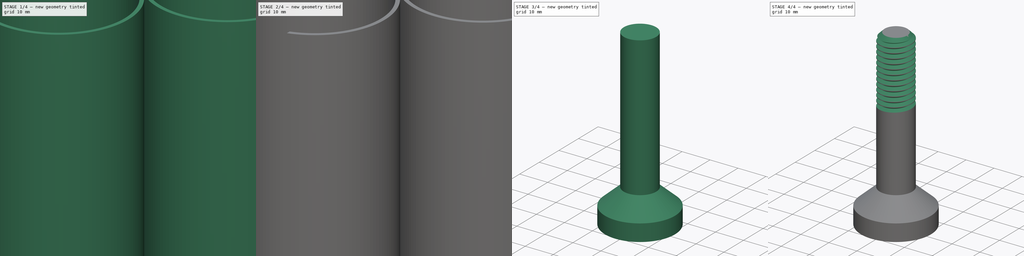
[diagram: build sequence overview — one tinted view per stage of 4, left to right]
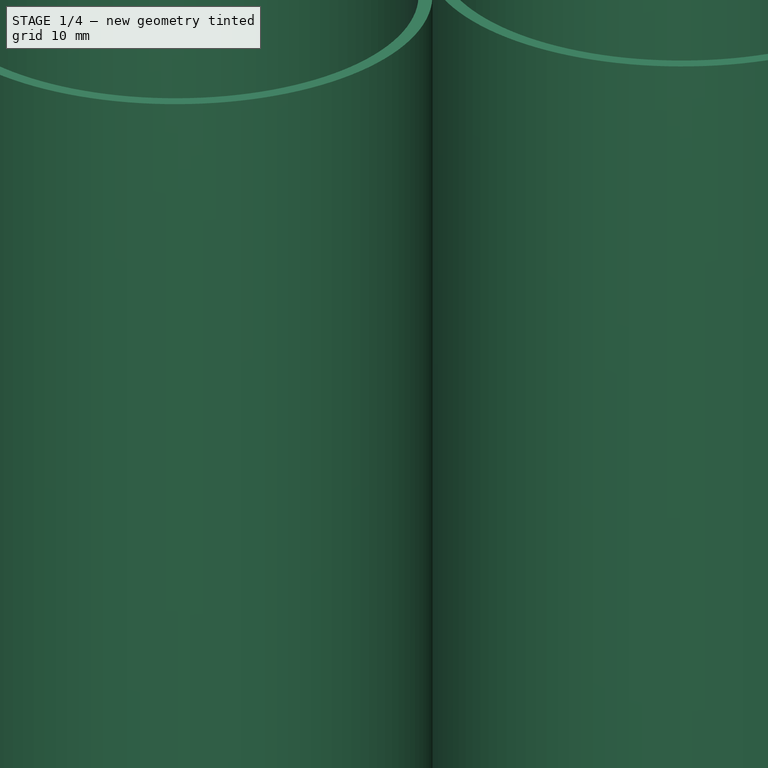
[diagram: stage 1 of 4 — iso view after this stage's code; geometry added in this stage tinted green]
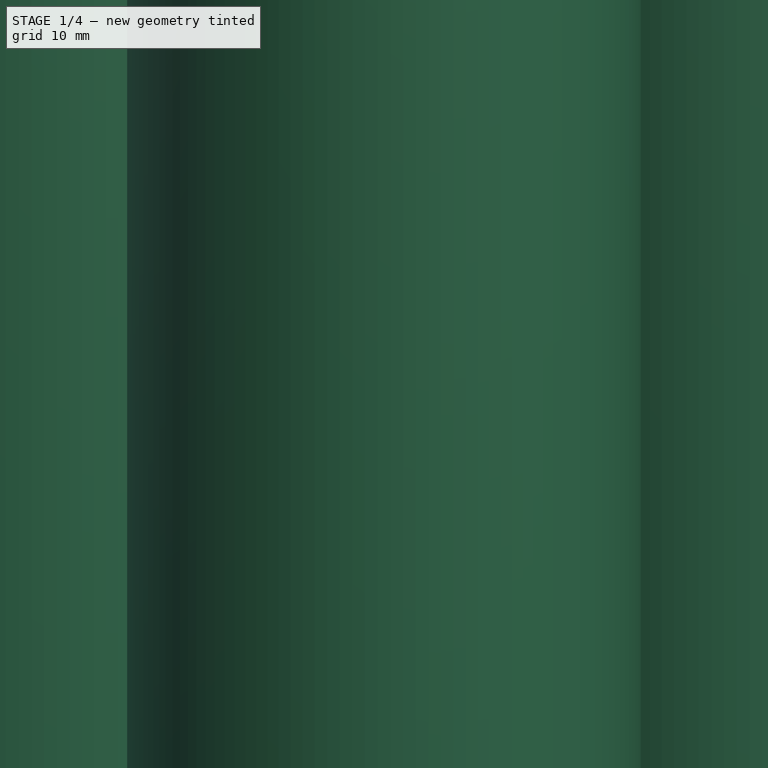
[diagram: stage 1 of 4 — front view after this stage's code; geometry added in this stage tinted green]
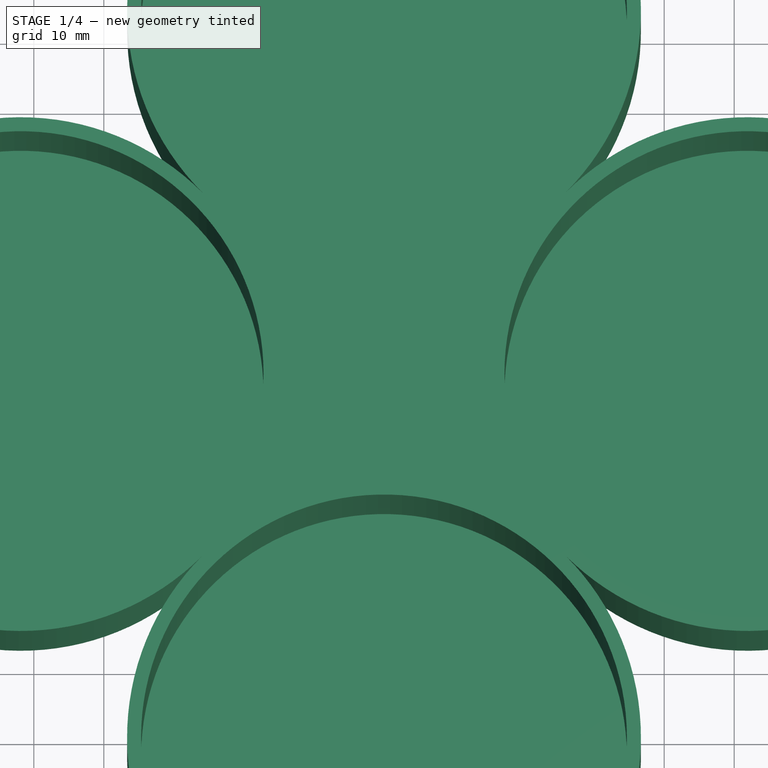
[diagram: stage 1 of 4 — top view after this stage's code; geometry added in this stage tinted green]
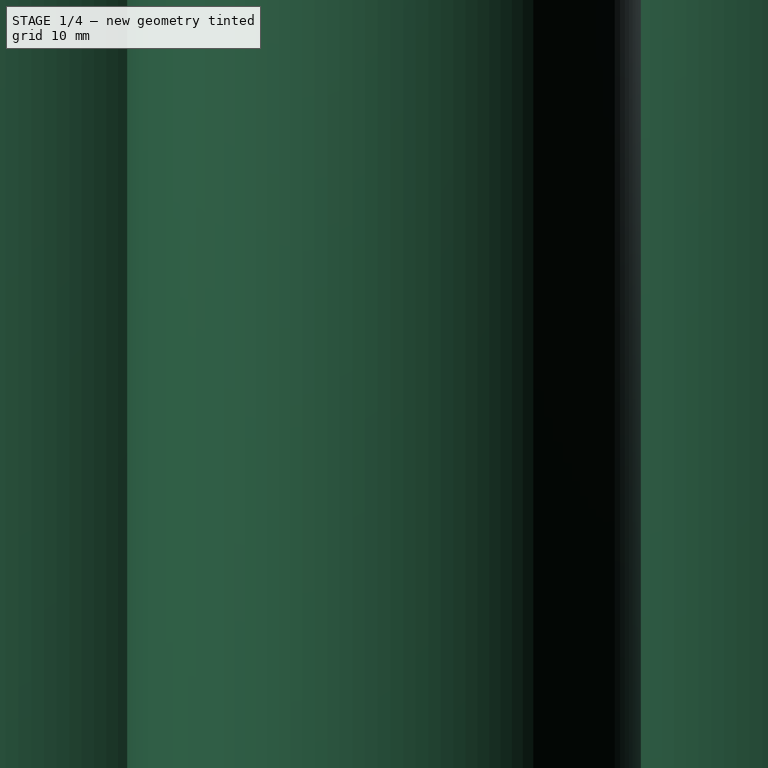
[diagram: stage 1 of 4 — right view after this stage's code; geometry added in this stage tinted green]
FCSTD DOCUMENT  (FreeCAD 2023.131R26244 +5365 (Git))
Label: Petri Dish Holder
License: All rights reserved
LicenseURL: http://en.wikipedia.org/wiki/All_rights_reserved
objects: Sketcher::SketchObject×7, PartDesign::Pad×3, PartDesign::Hole×2, PartDesign::Body×2, Spreadsheet::Sheet×1, PartDesign::Pocket×1, PartDesign::AdditiveCone×1, PartDesign::Chamfer×1, PartDesign::SubtractiveHelix×1
note: 43 computed .brp shape members not serialized (recipe doc carries the construction recipe); baked Part::Feature solids carry a one-line shape summary decoded from their .brp

FEATURE [Spreadsheet::Sheet] Spreadsheet  label="Parameters"
  PythonMode = false
  ShowCells = 0
  TreeRank = 1
  cells = A2=Petri Dish Diameter; B2(Petri_Dish_Diameter)=68; A3=Petri Dish Height; B3(Petri_Dish_Height)=18; A4=Petri Dishes per Stack; B4(Petri_Dishes_Per_Stack)=8; A5=Wall Thickness; B5(Wall_Thickness)=2; A6=Finger Slot Width; B6(Finger_Slot_Width)=20; A7=Handle Hole Depth; B7(Handle_Hole_Depth)=25; A9=Petri Dish Hole Diameter; B9(Petri_Dish_Hole_Diameter)==B2 * 1.02; A10=Petri Dish Stack Diameter; B10(Petri_Dish_Stack_Diameter)==B9 + B5 * 2; A11=Petri Dish Hole Distance from Origin; B11(Distance_From_Origin)==B10 * sqrt(2) / 2; A12=Petri Dish Hole Depth; B12(Petri_Dish_Hole_Depth)==B3 * B4; A13=Petri Dish Holder Height; B13(Holder_Height)==B12 + B5
FEATURE [Sketcher::SketchObject] Sketch
  ArcFitTolerance = 1e-06
  AttachmentSupport = -> [XY_Plane]
  ExternalBSplineMaxDegree = 5
  ExternalBSplineTolerance = 0.0001
  FullyConstrained = false
  InternalTolerance = 1e-06
  InvalidShape = false
  MakeInternals = false
  MapMode = 5
  Support = -> [XY_Plane]
  TreeRank = 12
  ValidateShape = true
  expr: Constraints[1] = <<Parameters>>.Petri_Dish_Stack_Diameter
  expr: Constraints[3] = <<Parameters>>.Petri_Dish_Stack_Diameter
  expr: Constraints[4] = <<Parameters>>.Petri_Dish_Stack_Diameter
  expr: Constraints[5] = <<Parameters>>.Petri_Dish_Stack_Diameter
  expr: Constraints[8] = <<Parameters>>.Distance_From_Origin
  expr: Constraints[9] = <<Parameters>>.Distance_From_Origin
  sketch-geometry (12):
    g0: ArcOfCircle CenterX=51.8734 CenterY=0 CenterZ=0 NormalX=0 NormalY=0 NormalZ=1 AngleXU=0 Radius=36.68 StartAngle=3.92699 EndAngle=8.63938
    g1: ArcOfCircle CenterX=0 CenterY=51.8734 CenterZ=0 NormalX=0 NormalY=0 NormalZ=1 AngleXU=0 Radius=36.68 StartAngle=5.49779 EndAngle=10.2102
    g2: ArcOfCircle CenterX=-51.8734 CenterY=0 CenterZ=0 NormalX=0 NormalY=0 NormalZ=1 AngleXU=0 Radius=36.68 StartAngle=0.785396 EndAngle=5.49779
    g3: ArcOfCircle CenterX=0 CenterY=-51.8734 CenterZ=0 NormalX=0 NormalY=0 NormalZ=1 AngleXU=0 Radius=36.68 StartAngle=2.35619 EndAngle=7.06858
    g4: GeomPoint [constr] X=25.9367 Y=25.9367 Z=0
    g5: GeomPoint [constr] X=25.9367 Y=25.9367 Z=0
    g6: GeomPoint [constr] X=25.9367 Y=-25.9367 Z=0
    g7: GeomPoint [constr] X=25.9367 Y=-25.9367 Z=0
    g8: GeomPoint [constr] X=-25.9367 Y=-25.9367 Z=0
    g9: GeomPoint [constr] X=-25.9367 Y=-25.9367 Z=0
    g10: GeomPoint [constr] X=-25.3996 Y=25.3882 Z=0
    g11: GeomPoint [constr] X=-25.3996 Y=25.3882 Z=0
  constraints (25):
    c: PointOnObject(g0,g-1)
    c: Diameter(g0) = 73.36
    c: PointOnObject(g1,g-2)
    c: Diameter(g1) = 73.36
    c: Diameter(g2) = 73.36
    c: Diameter(g3) = 73.36
    c: Symmetric(g2,g0,g-1)
    c: Symmetric(g1,g3,g-1)
    c: Distance(g1,g-1) = 51.8734
    c: Distance(g2,g-1) = 51.8734
    c: PointOnObject(g4,g1)
    c: PointOnObject(g5,g0)
    c: PointOnObject(g6,g0)
    c: PointOnObject(g7,g3)
    c: PointOnObject(g8,g2)
    c: PointOnObject(g9,g3)
    c: PointOnObject(g11,g2)
    c: Coincident(g10,g11)
    c: Coincident(g5,g4)
    c: Coincident(g6,g7)
    c: Coincident(g8,g9)
    c: Coincident(g1,g2)
    c: Coincident(g0,g1)
    c: Coincident(g3,g0)
    c: Coincident(g3,g2)
FEATURE [PartDesign::Pad] Pad
  AddSubType = 0
  AlongSketchNormal = false
  AutoTaperInnerAngle = true
  CheckUpToFaceLimits = true
  ClaimChildren = false
  Direction = (0,0,1)
  Fit = 0
  FitJoin = 0
  InnerFit = 0
  InnerFitJoin = 0
  InvalidShape = false
  Length = 146
  Length2 = 100
  Linearize = true
  NewSolid = false
  Profile = -> Sketch
  Suppress = false
  TaperInnerAngle = 0
  TaperInnerAngleRev = 0
  TreeRank = 13
  Type = 0
  ValidateShape = true
  _ProfileBasedVersion = 1
  expr: Length = <<Parameters>>.Holder_Height
FEATURE [Sketcher::SketchObject] Sketch001
  ArcFitTolerance = 1e-06
  AttachmentSupport = -> [Pad]
  ExternalBSplineMaxDegree = 5
  ExternalBSplineTolerance = 0.0001
  FullyConstrained = true
  InternalTolerance = 1e-06
  InvalidShape = false
  MakeInternals = false
  MapMode = 5
  Placement = pos=(0,0,162) rot=(0,0,1;0rad)
  Support = -> [Pad]
  TreeRank = 14
  ValidateShape = true
  expr: Constraints[2] = <<Parameters>>.Petri_Dish_Hole_Diameter
  expr: Constraints[3] = <<Parameters>>.Petri_Dish_Hole_Diameter
  expr: Constraints[4] = <<Parameters>>.Petri_Dish_Hole_Diameter
  expr: Constraints[5] = <<Parameters>>.Petri_Dish_Hole_Diameter
  expr: Constraints[8] = <<Parameters>>.Distance_From_Origin
  expr: Constraints[9] = <<Parameters>>.Distance_From_Origin
  sketch-geometry (4):
    g0: Circle CenterX=51.8734 CenterY=0 CenterZ=0 NormalX=0 NormalY=0 NormalZ=1 AngleXU=0 Radius=34.68
    g1: Circle CenterX=0 CenterY=51.8734 CenterZ=0 NormalX=0 NormalY=0 NormalZ=1 AngleXU=0 Radius=34.68
    g2: Circle CenterX=-51.8734 CenterY=0 CenterZ=0 NormalX=0 NormalY=0 NormalZ=1 AngleXU=0 Radius=34.68
    g3: Circle CenterX=0 CenterY=-51.8734 CenterZ=0 NormalX=0 NormalY=0 NormalZ=1 AngleXU=0 Radius=34.68
  constraints (10):
    c: PointOnObject(g0,g-1)
    c: PointOnObject(g1,g-2)
    c: Diameter(g0) = 69.36
    c: Diameter(g1) = 69.36
    c: Diameter(g2) = 69.36
    c: Diameter(g3) = 69.36
    c: Symmetric(g2,g0,g-1)
    c: Symmetric(g1,g3,g-1)
    c: Distance(g-1,g0) = 51.8734
    c: Distance(g-1,g3) = 51.8734
FEATURE [PartDesign::Hole] Hole  label="Petri_Dish_Holes"
  AddSubType = 1
  BaseFeature = -> Pad
  ClaimChildren = false
  CustomThreadClearance = 0
  Depth = 160
  DepthType = 0
  Diameter = 69.36
  DrillForDepth = false
  DrillPoint = 0
  DrillPointAngle = 118
  Fit = 0
  FitJoin = 0
  HoleCutCountersinkAngle = 90
  HoleCutCustomValues = false
  HoleCutDepth = 0
  HoleCutDiameter = 74.9
  HoleCutType = 0
  InnerFit = 0
  InnerFitJoin = 0
  InvalidShape = false
  Linearize = true
  ModelThread = false
  NewSolid = false
  Profile = -> Sketch001
  Suppress = false
  Tapered = false
  TaperedAngle = 90
  ThreadClass = 0
  ThreadDepth = 160
  ThreadDepthType = 0
  ThreadDirection = 0
  ThreadFit = 0
  ThreadSize = 0
  ThreadType = 0
  Threaded = false
  TreeRank = 15
  UseCustomThreadClearance = false
  ValidateShape = true
  _ProfileBasedVersion = 1
  expr: Depth = <<Parameters>>.Petri_Dish_Hole_Depth
  expr: Diameter = <<Parameters>>.Petri_Dish_Hole_Diameter
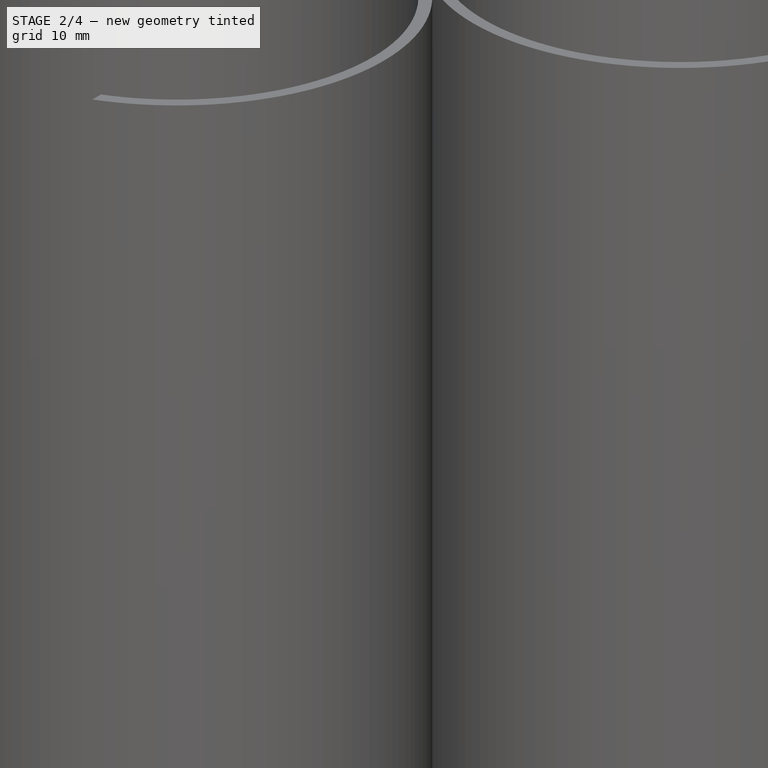
[diagram: stage 2 of 4 — iso view after this stage's code; geometry added in this stage tinted green]
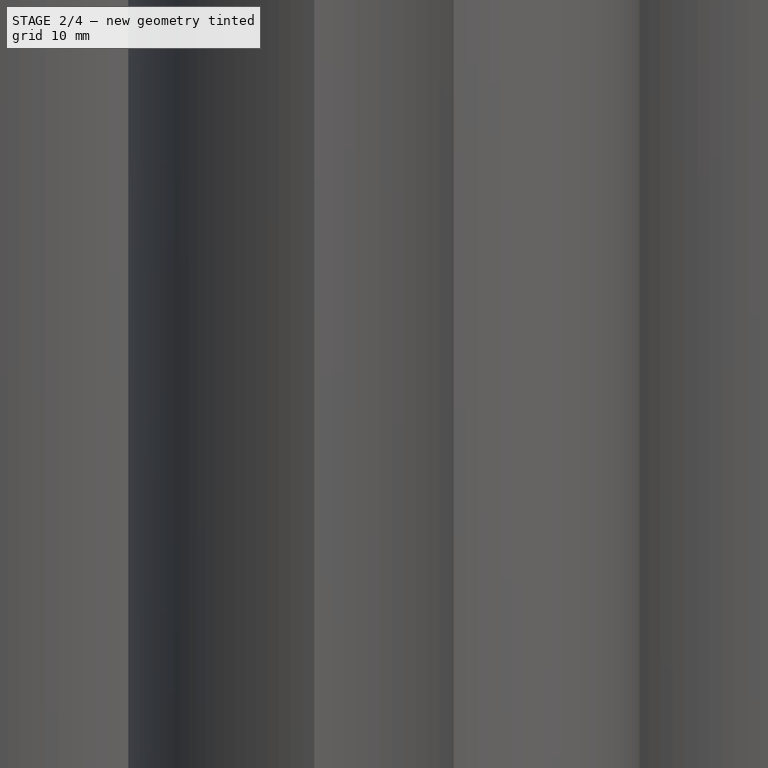
[diagram: stage 2 of 4 — front view after this stage's code; geometry added in this stage tinted green]
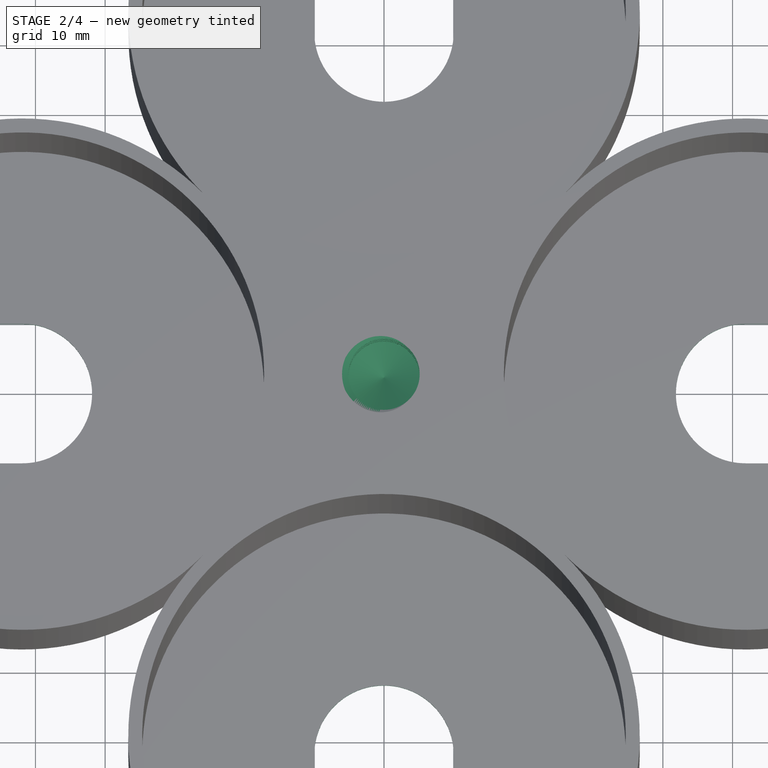
[diagram: stage 2 of 4 — top view after this stage's code; geometry added in this stage tinted green]
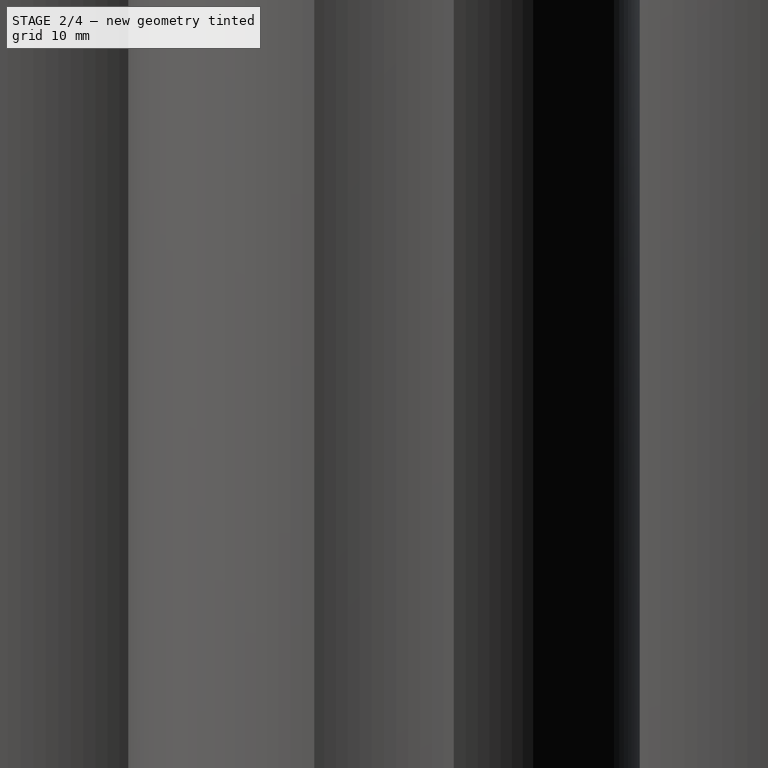
[diagram: stage 2 of 4 — right view after this stage's code; geometry added in this stage tinted green]
FEATURE [Sketcher::SketchObject] Sketch002
  ArcFitTolerance = 1e-06
  AttachmentSupport = -> [Hole]
  ExternalBSplineMaxDegree = 5
  ExternalBSplineTolerance = 0.0001
  FullyConstrained = true
  InternalTolerance = 1e-06
  InvalidShape = false
  MakeInternals = false
  MapMode = 5
  Placement = pos=(0,0,162) rot=(0,0,1;0rad)
  Support = -> [Hole]
  TreeRank = 16
  ValidateShape = true
  expr: Constraints[11] = <<Parameters>>.Finger_Slot_Width
  expr: Constraints[12] = <<Parameters>>.Finger_Slot_Width
  expr: Constraints[13] = <<Parameters>>.Finger_Slot_Width
  expr: Constraints[14] = <<Parameters>>.Distance_From_Origin
  expr: Constraints[15] = <<Parameters>>.Distance_From_Origin
  expr: Constraints[16] = <<Parameters>>.Distance_From_Origin
  expr: Constraints[17] = <<Parameters>>.Petri_Dish_Hole_Diameter
  expr: Constraints[1] = <<Parameters>>.Finger_Slot_Width
  expr: Constraints[33] = <<Parameters>>.Petri_Dish_Hole_Diameter
  expr: Constraints[34] = <<Parameters>>.Petri_Dish_Hole_Diameter
  expr: Constraints[35] = <<Parameters>>.Petri_Dish_Hole_Diameter
  expr: Constraints[7] = <<Parameters>>.Distance_From_Origin
  sketch-geometry (16):
    g0: ArcOfCircle CenterX=51.8734 CenterY=0 CenterZ=0 NormalX=0 NormalY=0 NormalZ=1 AngleXU=0 Radius=10 StartAngle=1.5708 EndAngle=4.71239
    g1: LineSegment StartX=51.8734 StartY=10 StartZ=0 EndX=121.233 EndY=10 EndZ=0
    g2: LineSegment StartX=51.8734 StartY=-10 StartZ=0 EndX=121.233 EndY=-10 EndZ=0
    g3: LineSegment StartX=121.233 StartY=10 StartZ=0 EndX=121.233 EndY=-10 EndZ=0
    g4: ArcOfCircle CenterX=0 CenterY=-51.8734 CenterZ=0 NormalX=0 NormalY=0 NormalZ=1 AngleXU=0 Radius=10 StartAngle=-9e-16 EndAngle=3.14159
    g5: ArcOfCircle CenterX=-51.8734 CenterY=0 CenterZ=0 NormalX=0 NormalY=0 NormalZ=1 AngleXU=0 Radius=10 StartAngle=4.71239 EndAngle=7.85398
    g6: ArcOfCircle CenterX=0 CenterY=51.8734 CenterZ=0 NormalX=0 NormalY=0 NormalZ=1 AngleXU=0 Radius=10 StartAngle=3.14159 EndAngle=6.28319
    g7: LineSegment StartX=-10 StartY=-51.8734 StartZ=0 EndX=-10 EndY=-121.233 EndZ=0
    g8: LineSegment StartX=10 StartY=-51.8734 StartZ=0 EndX=10 EndY=-121.233 EndZ=0
    g9: LineSegment StartX=10 StartY=-121.233 StartZ=0 EndX=-10 EndY=-121.233 EndZ=0
    g10: LineSegment StartX=-51.8734 StartY=-10 StartZ=0 EndX=-121.233 EndY=-10 EndZ=0
    g11: LineSegment StartX=-51.8734 StartY=10 StartZ=0 EndX=-121.233 EndY=10 EndZ=0
    g12: LineSegment StartX=-121.233 StartY=10 StartZ=0 EndX=-121.233 EndY=-10 EndZ=0
    g13: LineSegment StartX=-10 StartY=51.8734 StartZ=0 EndX=-10 EndY=121.233 EndZ=0
    g14: LineSegment StartX=10 StartY=51.8734 StartZ=0 EndX=10 EndY=121.233 EndZ=0
    g15: LineSegment StartX=10 StartY=121.233 StartZ=0 EndX=-10 EndY=121.233 EndZ=0
  constraints (44):
    c: PointOnObject(g0,g-1)
    c: Diameter(g0) = 20
    c: Horizontal(g1)
    c: Horizontal(g2)
    c: Coincident(g3,g1)
    c: Coincident(g3,g2)
    c: Vertical(g3)
    c: Distance(g-1,g0) = 51.8734
    c: PointOnObject(g4,g-2)
    c: PointOnObject(g5,g-1)
    c: PointOnObject(g6,g-2)
    c: Diameter(g6) = 20
    c: Diameter(g5) = 20
    c: Diameter(g4) = 20
    c: Distance(g-1,g4) = 51.8734
    c: Distance(g-1,g6) = 51.8734
    c: Distance(g-1,g5) = 51.8734
    c: Distance(g1,g1) = 69.36
    c: Vertical(g7)
    c: Vertical(g8)
    c: Coincident(g9,g8)
    c: Coincident(g9,g7)
    c: Horizontal(g9)
    c: Horizontal(g10)
    c: Horizontal(g11)
    c: Coincident(g12,g11)
    c: Coincident(g12,g10)
    c: Vertical(g13)
    c: Vertical(g14)
    c: Coincident(g15,g14)
    c: Coincident(g15,g13)
    c: Perpendicular(g10,g12)
    c: Perpendicular(g13,g15)
    c: Distance(g14,g14) = 69.36
    c: Distance(g10,g10) = 69.36
    c: Distance(g8,g8) = 69.36
    c: Tangent(g5,g11) = -1.5708
    c: Tangent(g5,g10) = 1.5708
    c: Tangent(g4,g7) = -1.5708
    c: Tangent(g4,g8) = 1.5708
    c: Tangent(g0,g2) = -1.5708
    c: Tangent(g0,g1) = 1.5708
    c: Tangent(g6,g14) = -1.5708
    c: Tangent(g6,g13) = 1.5708
FEATURE [PartDesign::Pocket] Pocket  label="Finger_Slots"
  AddSubType = 1
  AutoTaperInnerAngle = true
  BaseFeature = -> Hole
  CheckUpToFaceLimits = true
  ClaimChildren = false
  Fit = 0
  FitJoin = 0
  InnerFit = 0
  InnerFitJoin = 0
  InvalidShape = false
  Length = 162
  Length2 = 100
  Linearize = true
  NewSolid = false
  Profile = -> Sketch002
  Suppress = false
  TaperInnerAngle = 0
  TaperInnerAngleRev = 0
  TreeRank = 17
  Type = 0
  ValidateShape = true
  _ProfileBasedVersion = 1
  _Version = 1
  expr: Length = <<Parameters>>.Holder_Height
FEATURE [Sketcher::SketchObject] Sketch003
  ArcFitTolerance = 1e-06
  AttachmentSupport = -> [Pocket]
  ExternalBSplineMaxDegree = 5
  ExternalBSplineTolerance = 0.0001
  FullyConstrained = false
  InternalTolerance = 1e-06
  InvalidShape = false
  MakeInternals = false
  MapMode = 5
  Placement = pos=(0,0,162) rot=(0,0,1;0rad)
  Support = -> [Pocket]
  TreeRank = 18
  ValidateShape = true
  sketch-geometry (1):
    g0: Circle CenterX=0 CenterY=0 CenterZ=0 NormalX=0 NormalY=0 NormalZ=1 AngleXU=0 Radius=4.30913
  constraints (1):
    c: Coincident(g0,g-1)
FEATURE [PartDesign::Hole] Hole001  label="Handle_Hole"
  AddSubType = 1
  BaseFeature = -> Pocket
  ClaimChildren = false
  CustomThreadClearance = 0
  Depth = 25
  DepthType = 0
  Diameter = 10.234
  DrillForDepth = false
  DrillPoint = 1
  DrillPointAngle = 118
  Fit = 0
  FitJoin = 0
  HoleCutCountersinkAngle = 90
  HoleCutCustomValues = false
  HoleCutDepth = 0
  HoleCutDiameter = 0
  HoleCutType = 0
  InnerFit = 0
  InnerFitJoin = 0
  InvalidShape = false
  Linearize = true
  ModelThread = true
  NewSolid = false
  Profile = -> Sketch003
  Suppress = false
  Tapered = false
  TaperedAngle = 90
  ThreadClass = 0
  ThreadDepth = 25
  ThreadDepthType = 0
  ThreadDirection = 0
  ThreadFit = 0
  ThreadSize = 20
  ThreadType = 1
  Threaded = true
  TreeRank = 19
  UseCustomThreadClearance = false
  ValidateShape = true
  _ProfileBasedVersion = 1
  expr: Depth = <<Parameters>>.Handle_Hole_Depth
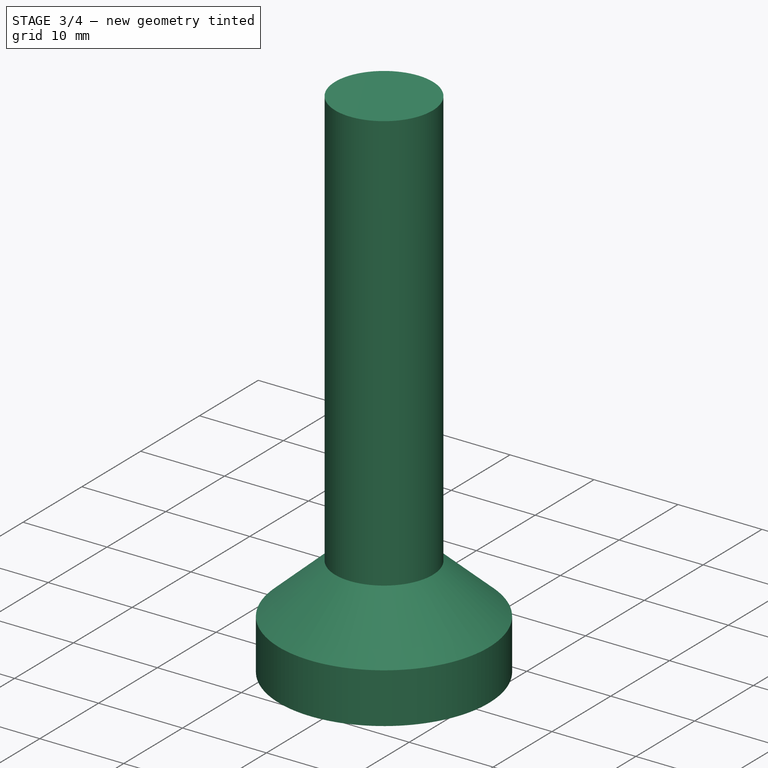
[diagram: stage 3 of 4 — iso view after this stage's code; geometry added in this stage tinted green]
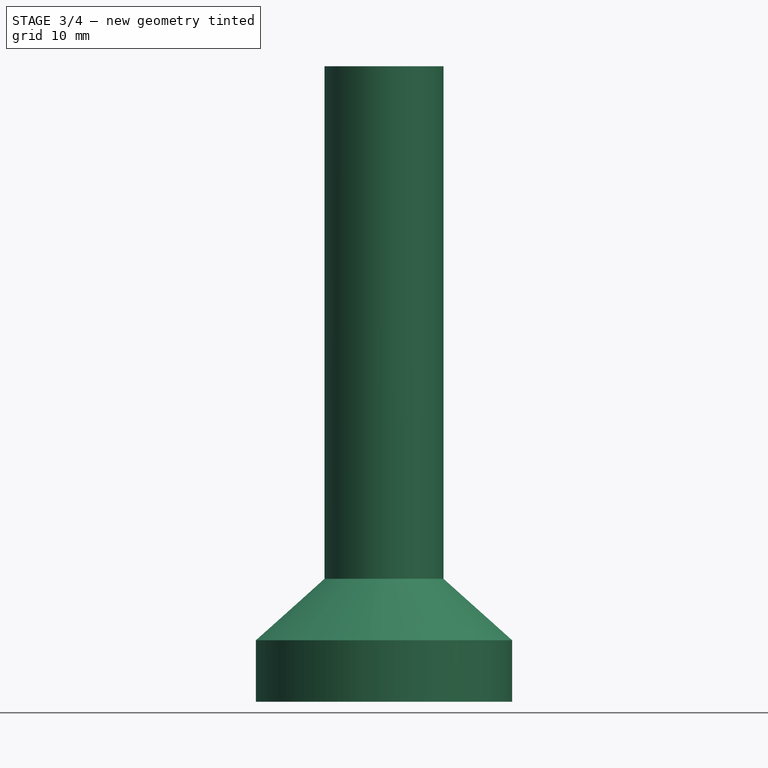
[diagram: stage 3 of 4 — front view after this stage's code; geometry added in this stage tinted green]
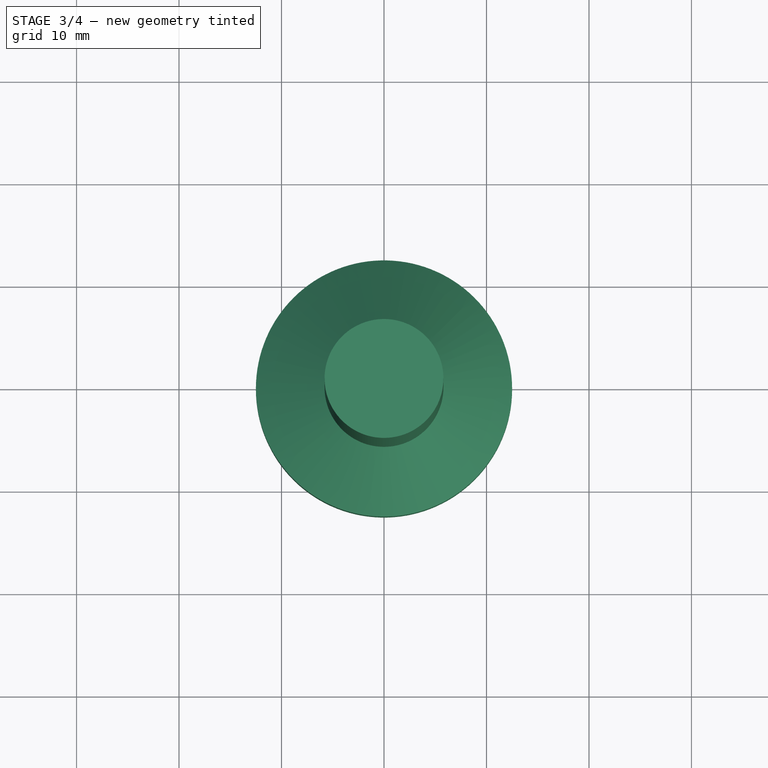
[diagram: stage 3 of 4 — top view after this stage's code; geometry added in this stage tinted green]
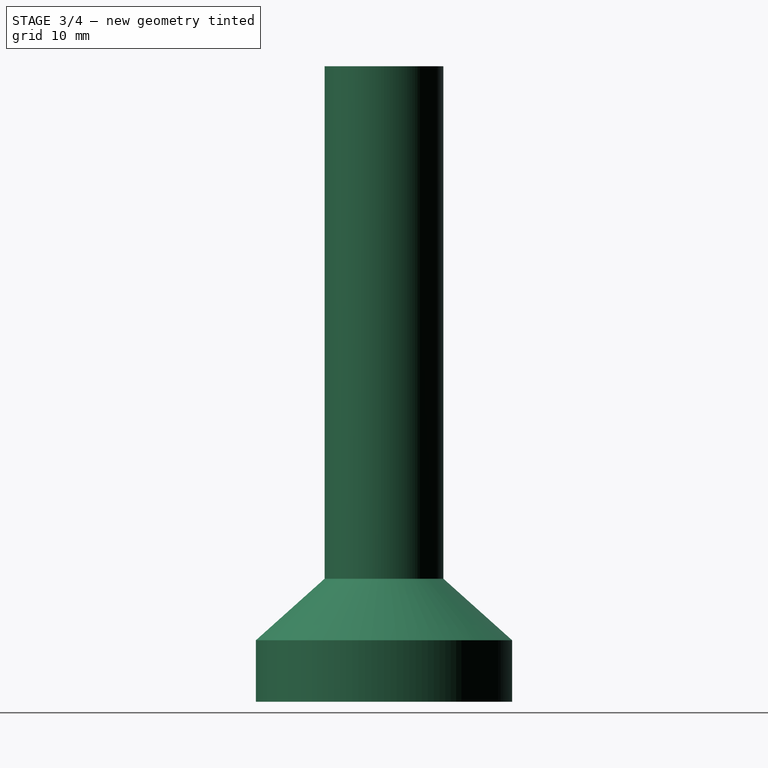
[diagram: stage 3 of 4 — right view after this stage's code; geometry added in this stage tinted green]
FEATURE [PartDesign::Body] Body
  AutoGroupSolids = false
  ClaimAllChildren = false
  ExportMode = 0
  Group = -> [Sketch,Pad,Sketch001,Hole,Sketch002,Pocket,Sketch003,Hole001]
  InvalidShape = false
  Origin = -> Origin
  Tip = -> Hole001
  TreeRank = 11
  ValidateShape = true
  _ExportChildren = -> [Pad,Hole,Pocket,Hole001]
  _GroupVersion = 1
FEATURE [Sketcher::SketchObject] Sketch004
  ArcFitTolerance = 1e-06
  AttachmentSupport = -> [Body]
  ExternalBSplineMaxDegree = 5
  ExternalBSplineTolerance = 0.0001
  FullyConstrained = true
  InternalTolerance = 1e-06
  InvalidShape = false
  MakeInternals = false
  MapMode = 2
  Support = -> [Body]
  TreeRank = 30
  ValidateShape = true
  sketch-geometry (1):
    g0: Circle CenterX=0 CenterY=0 CenterZ=0 NormalX=0 NormalY=0 NormalZ=1 AngleXU=0 Radius=12.5
  constraints (2):
    c: Coincident(g0,g-1)
    c: Diameter(g0) = 25
FEATURE [PartDesign::Pad] Pad001
  AddSubType = 0
  AlongSketchNormal = false
  AutoTaperInnerAngle = true
  CheckUpToFaceLimits = true
  ClaimChildren = false
  Direction = (0,0,1)
  Fit = 0
  FitJoin = 0
  InnerFit = 0
  InnerFitJoin = 0
  InvalidShape = false
  Length = 6
  Length2 = 100
  Linearize = true
  NewSolid = false
  Profile = -> Sketch004
  Suppress = false
  TaperInnerAngle = 0
  TaperInnerAngleRev = 0
  TreeRank = 31
  Type = 0
  ValidateShape = true
  _ProfileBasedVersion = 1
FEATURE [PartDesign::AdditiveCone] Cone
  AddSubType = 0
  Angle = 360
  AttacherType = Attacher::AttachEngine3D
  AttachmentSupport = -> [Pad001]
  BaseFeature = -> Pad001
  Height = 6
  InvalidShape = false
  MapMode = 5
  NewSolid = false
  Placement = pos=(0,0,6) rot=(0,0,1;0rad)
  Radius1 = 12.5
  Radius2 = 5.8
  Support = -> [Pad001]
  Suppress = false
  TreeRank = 32
  ValidateShape = true
FEATURE [Sketcher::SketchObject] Sketch005
  ArcFitTolerance = 1e-06
  AttachmentSupport = -> [Cone]
  ExternalBSplineMaxDegree = 5
  ExternalBSplineTolerance = 0.0001
  FullyConstrained = true
  InternalTolerance = 1e-06
  InvalidShape = false
  MakeInternals = false
  MapMode = 5
  Placement = pos=(0,0,12) rot=(0,0,1;0rad)
  Support = -> [Cone]
  TreeRank = 33
  ValidateShape = true
  sketch-geometry (1):
    g0: Circle CenterX=0 CenterY=0 CenterZ=0 NormalX=0 NormalY=0 NormalZ=1 AngleXU=0 Radius=5.8
  constraints (2):
    c: Coincident(g0,g-1)
    c: Diameter(g0) = 11.6
FEATURE [PartDesign::Pad] Pad002
  AddSubType = 0
  AlongSketchNormal = false
  AutoTaperInnerAngle = true
  BaseFeature = -> Cone
  CheckUpToFaceLimits = true
  ClaimChildren = false
  Direction = (0,0,1)
  Fit = 0
  FitJoin = 0
  InnerFit = 0
  InnerFitJoin = 0
  InvalidShape = false
  Length = 50
  Length2 = 100
  Linearize = true
  NewSolid = false
  Profile = -> Sketch005
  Suppress = false
  TaperInnerAngle = 0
  TaperInnerAngleRev = 0
  TreeRank = 34
  Type = 0
  ValidateShape = true
  _ProfileBasedVersion = 1
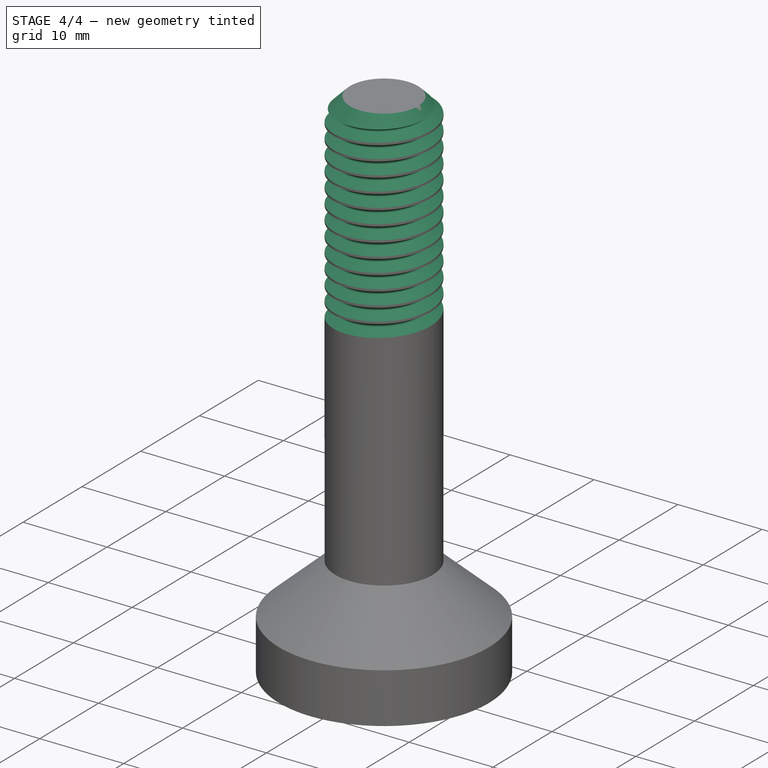
[diagram: stage 4 of 4 — iso view after this stage's code; geometry added in this stage tinted green]
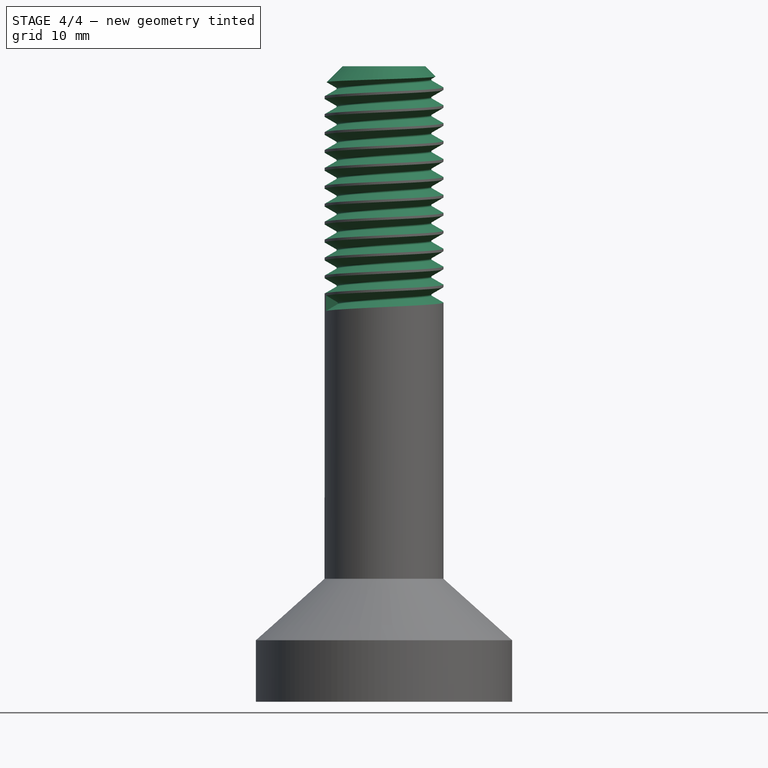
[diagram: stage 4 of 4 — front view after this stage's code; geometry added in this stage tinted green]
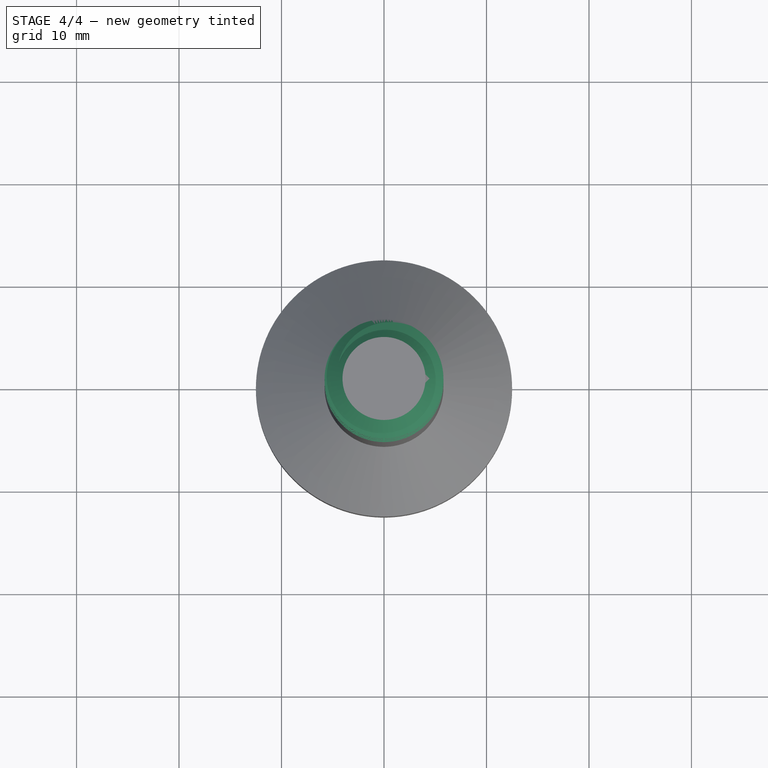
[diagram: stage 4 of 4 — top view after this stage's code; geometry added in this stage tinted green]
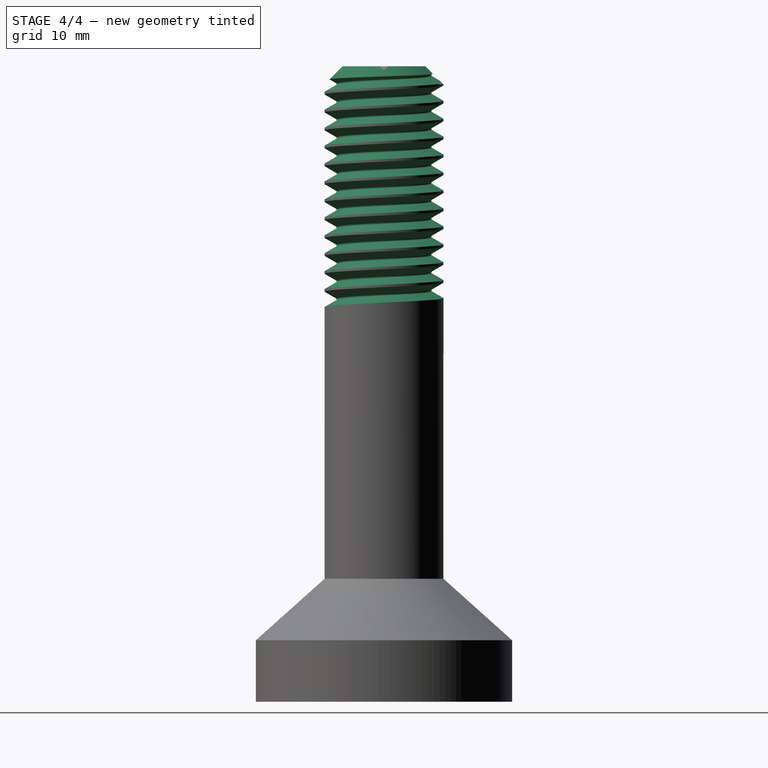
[diagram: stage 4 of 4 — right view after this stage's code; geometry added in this stage tinted green]
FEATURE [PartDesign::Chamfer] Chamfer
  AddSubType = 0
  Angle = 45
  Base = -> Pad002 [Face5]
  BaseFeature = -> Pad002
  ChamferType = 0
  FlipDirection = false
  InvalidShape = false
  NewSolid = false
  Size = 1.75
  Size2 = 1
  SupportTransform = false
  Suppress = false
  TreeRank = 35
  ValidateShape = true
FEATURE [Sketcher::SketchObject] Sketch006
  ArcFitTolerance = 1e-06
  AttachmentSupport = -> [YZ_Plane001]
  ExternalBSplineMaxDegree = 5
  ExternalBSplineTolerance = 0.0001
  FullyConstrained = true
  InternalTolerance = 1e-06
  InvalidShape = false
  MakeInternals = false
  MapMode = 5
  Placement = pos=(0,0,0) rot=(0.57735,0.57735,0.57735;2.0944rad)
  Support = -> [YZ_Plane001]
  TreeRank = 36
  ValidateShape = true
  sketch-geometry (4):
    g0: LineSegment StartX=6.01 StartY=63.76 StartZ=0 EndX=6.01 EndY=62.01 EndZ=0
    g1: LineSegment StartX=6.01 StartY=62.01 StartZ=0 EndX=4.68196 EndY=62.7767 EndZ=0
    g2: LineSegment StartX=4.68196 StartY=62.9933 StartZ=0 EndX=6.01 EndY=63.76 EndZ=0
    g3: ArcOfCircle CenterX=4.74446 CenterY=62.885 CenterZ=0 NormalX=0 NormalY=0 NormalZ=1 AngleXU=0 Radius=0.125 StartAngle=2.0944 EndAngle=4.18879
  constraints (11):
    c: Vertical(g0)
    c: Coincident(g1,g0)
    c: Coincident(g2,g0)
    c: Equal(g2,g1)
    c: Distance(g0,g0) = 1.75
    c: Angle(g1,g2) = 1.0472
    c: Tangent(g1,g3) = 1.5708
    c: Tangent(g2,g3) = 1.5708
    c: DistanceX(g0) = 6.01
    c: Diameter(g3) = 0.25
    c: DistanceY(g-1,g0) = 62.01
FEATURE [PartDesign::SubtractiveHelix] Helix
  AddSubType = 1
  Angle = 0
  Axis = (-2e-16,3e-16,1)
  Base = (0,0,0)
  BaseFeature = -> Chamfer
  ClaimChildren = false
  Fit = 0
  FitJoin = 0
  Growth = 0
  HasBeenEdited = true
  Height = 24
  InnerFit = 0
  InnerFitJoin = 0
  InvalidShape = false
  LeftHanded = false
  Linearize = true
  Mode = 0
  NewSolid = false
  Outside = false
  Pitch = 1.75
  Profile = -> Sketch006
  ReferenceAxis = -> Sketch006 [V_Axis]
  Reversed = true
  Suppress = false
  TreeRank = 37
  Turns = 13.7143
  ValidateShape = true
  _ProfileBasedVersion = 1
FEATURE [PartDesign::Body] Body001  label="Handle"
  AutoGroupSolids = false
  ClaimAllChildren = false
  ExportMode = 0
  Group = -> [Sketch004,Pad001,Cone,Sketch005,Pad002,Chamfer,Sketch006,Helix]
  InvalidShape = false
  Origin = -> Origin001
  Tip = -> Helix
  TreeRank = 29
  ValidateShape = true
  _ExportChildren = -> [Pad001,Cone,Pad002,Chamfer,Helix]
  _GroupVersion = 1
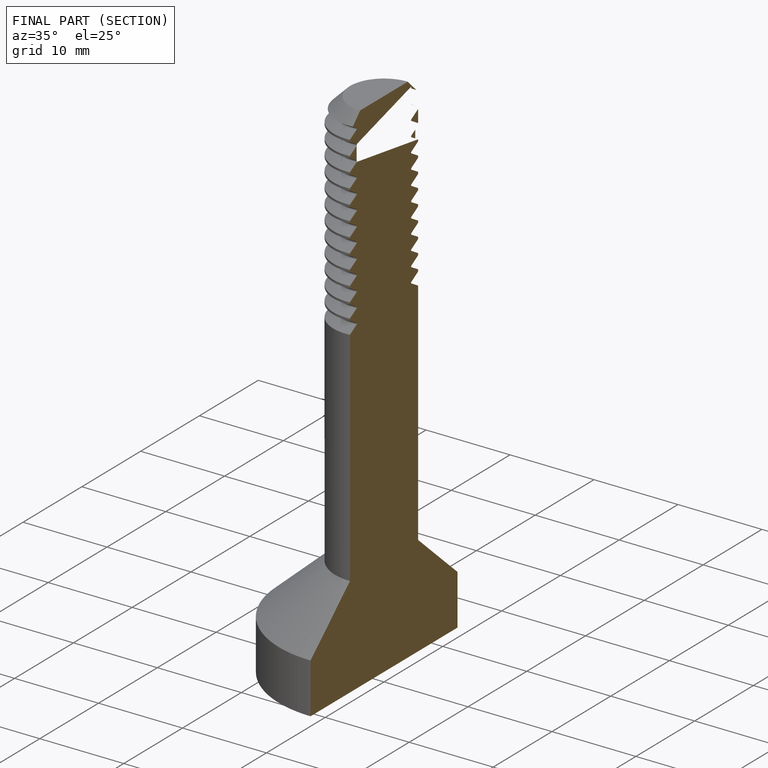
[diagram: finished part — half-section view (interior)]
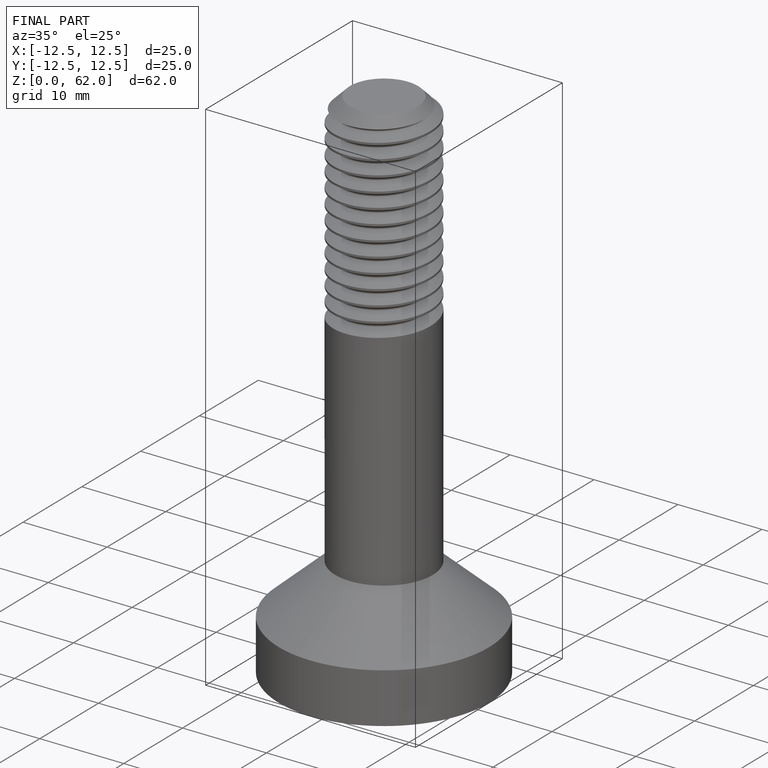
[diagram: finished part — iso view with bounding-box wireframe]
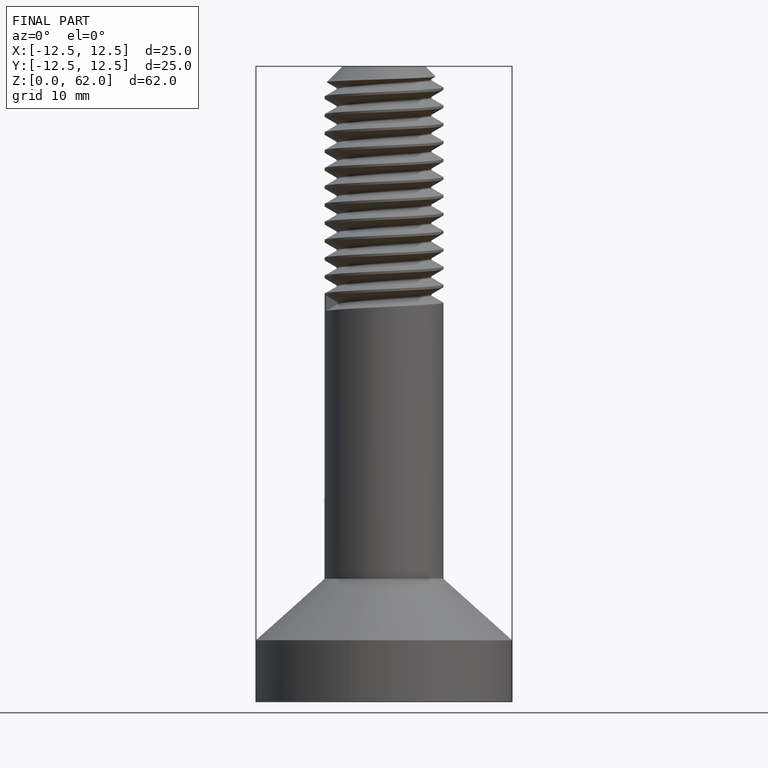
[diagram: finished part — front view with bounding-box wireframe]
